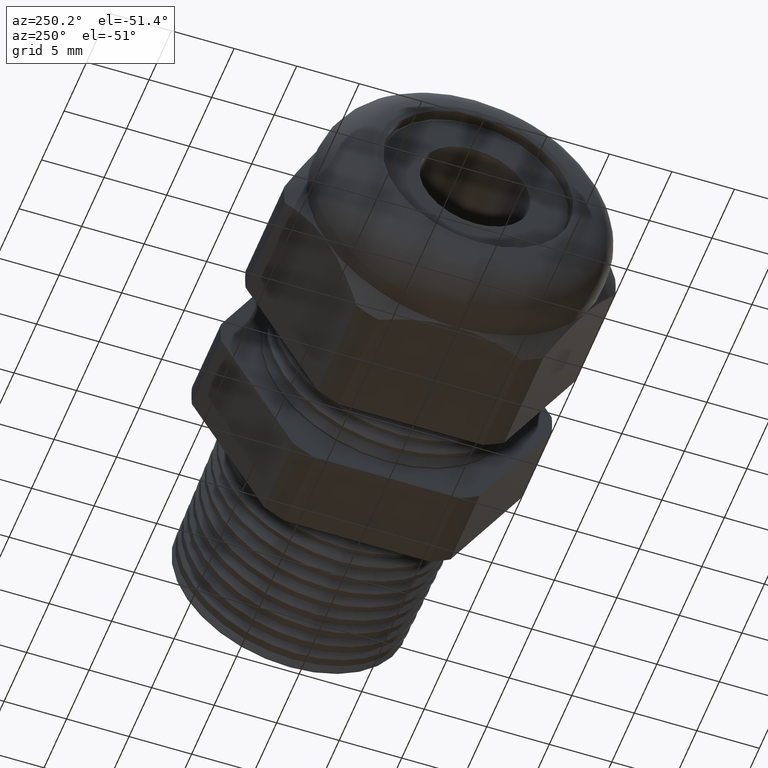
[diagram: clean part render]
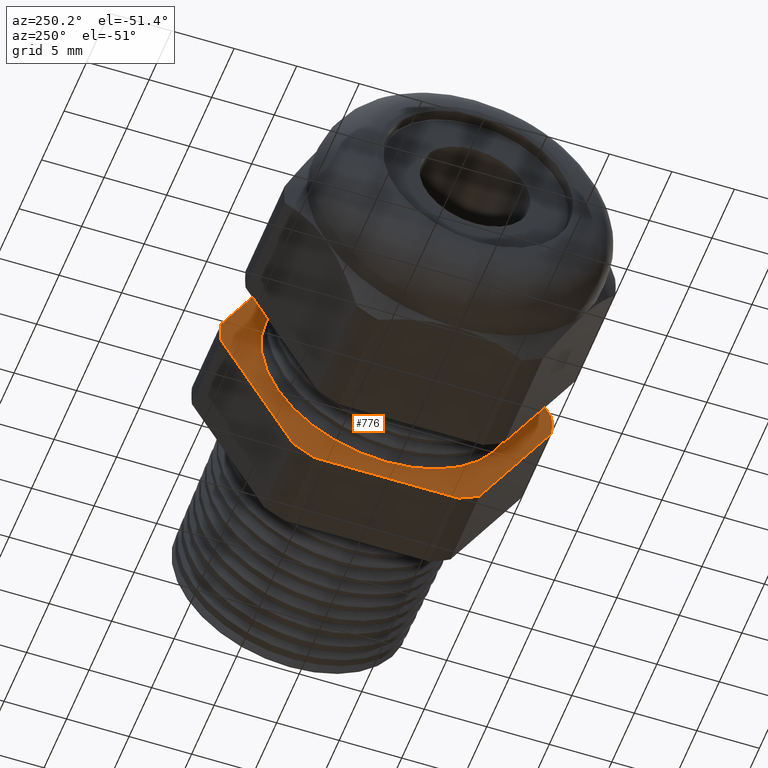
[diagram: same view with one face highlighted and labeled with its STEP entity id]
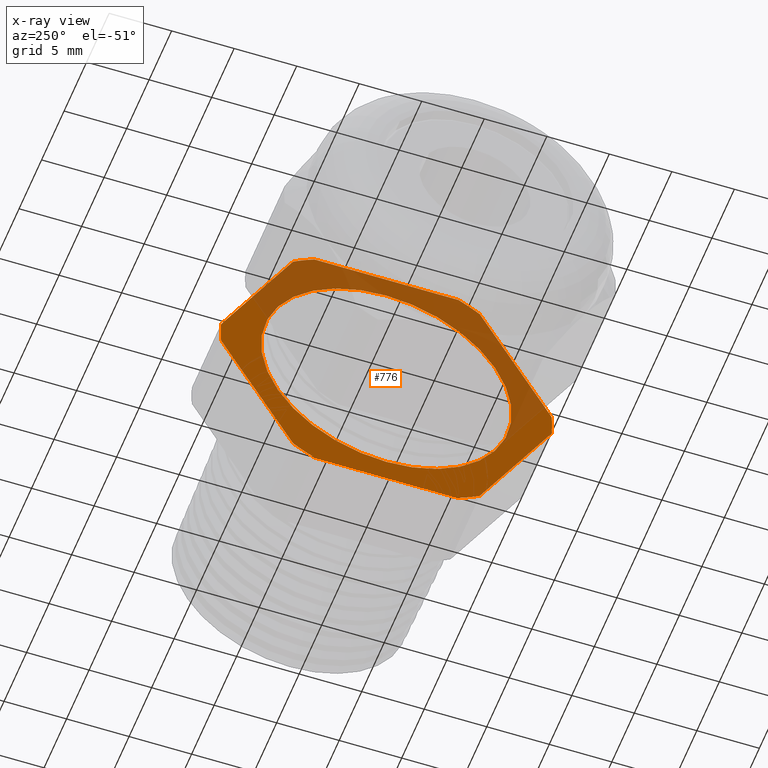
[diagram: x-ray of the same camera — body ghosted, the highlighted face saturated]
A machine part, auxiliary view. The second image highlights one B-rep face of the part: STEP entity #776.
The next image is the same camera in x-ray: the body ghosted, the highlighted face saturated — about 44% of this face is hidden behind the body in this view.
In plain terms, the highlighted planar face has unit normal (-1, 0, 0).
Its self-contained STEP definition (entity closure, byte-faithful):
#108 = VERTEX_POINT ( 'NONE', #1258 ) ;
#110 = VERTEX_POINT ( 'NONE', #1256 ) ;
#112 = EDGE_CURVE ( 'NONE', #108, #110, #1255, .T. ) ;
#611 = VERTEX_POINT ( 'NONE', #2126 ) ;
#644 = VERTEX_POINT ( 'NONE', #2151 ) ;
#646 = EDGE_CURVE ( 'NONE', #664, #644, #2150, .T. ) ;
#654 = VERTEX_POINT ( 'NONE', #2199 ) ;
#656 = EDGE_CURVE ( 'NONE', #671, #654, #2198, .T. ) ;
#664 = VERTEX_POINT ( 'NONE', #2183 ) ;
#666 = EDGE_CURVE ( 'NONE', #654, #664, #2182, .T. ) ;
#671 = VERTEX_POINT ( 'NONE', #2233 ) ;
#673 = EDGE_CURVE ( 'NONE', #611, #671, #2232, .T. ) ;
#682 = VERTEX_POINT ( 'NONE', #2213 ) ;
#684 = EDGE_CURVE ( 'NONE', #699, #682, #2211, .T. ) ;
#691 = VERTEX_POINT ( 'NONE', #2261 ) ;
#693 = EDGE_CURVE ( 'NONE', #682, #691, #2260, .T. ) ;
#699 = VERTEX_POINT ( 'NONE', #2246 ) ;
#701 = EDGE_CURVE ( 'NONE', #716, #699, #2245, .T. ) ;
#707 = VERTEX_POINT ( 'NONE', #2292 ) ;
#709 = EDGE_CURVE ( 'NONE', #644, #707, #2291, .T. ) ;
#716 = VERTEX_POINT ( 'NONE', #2277 ) ;
#718 = EDGE_CURVE ( 'NONE', #707, #716, #2276, .T. ) ;
#734 = VERTEX_POINT ( 'NONE', #2312 ) ;
#736 = EDGE_CURVE ( 'NONE', #752, #734, #2311, .T. ) ;
#743 = EDGE_CURVE ( 'NONE', #734, #611, #2045, .T. ) ;
#752 = VERTEX_POINT ( 'NONE', #2345 ) ;
#754 = EDGE_CURVE ( 'NONE', #691, #752, #2344, .T. ) ;
#767 = ORIENTED_EDGE ( 'NONE', *, *, #701, .T. ) ;
#768 = ORIENTED_EDGE ( 'NONE', *, *, #684, .T. ) ;
#769 = ORIENTED_EDGE ( 'NONE', *, *, #693, .T. ) ;
#770 = ORIENTED_EDGE ( 'NONE', *, *, #754, .T. ) ;
#773 = EDGE_CURVE ( 'NONE', #110, #108, #2375, .T. ) ;
#776 = ADVANCED_FACE ( 'NONE', ( #2370, #2430 ), #2429, .T. ) ;
#777 = EDGE_LOOP ( 'NONE', ( #778, #779 ) ) ;
#778 = ORIENTED_EDGE ( 'NONE', *, *, #773, .T. ) ;
#779 = ORIENTED_EDGE ( 'NONE', *, *, #112, .T. ) ;
#780 = EDGE_LOOP ( 'NONE', ( #781, #782, #783, #838, #839, #840, #841, #842, #767, #768, #769, #770 ) ) ;
#781 = ORIENTED_EDGE ( 'NONE', *, *, #736, .T. ) ;
#782 = ORIENTED_EDGE ( 'NONE', *, *, #743, .T. ) ;
#783 = ORIENTED_EDGE ( 'NONE', *, *, #673, .T. ) ;
#838 = ORIENTED_EDGE ( 'NONE', *, *, #656, .T. ) ;
#839 = ORIENTED_EDGE ( 'NONE', *, *, #666, .T. ) ;
#840 = ORIENTED_EDGE ( 'NONE', *, *, #646, .T. ) ;
#841 = ORIENTED_EDGE ( 'NONE', *, *, #709, .T. ) ;
#842 = ORIENTED_EDGE ( 'NONE', *, *, #718, .T. ) ;
#1251 = DIRECTION ( 'NONE',  ( 0.0000000000000000000, 0.0000000000000000000, -1.000000000000000000 ) ) ;
#1252 = DIRECTION ( 'NONE',  ( 1.000000000000000000, 0.0000000000000000000, 0.0000000000000000000 ) ) ;
#1253 = CARTESIAN_POINT ( 'NONE',  ( -0.5659055118110234400, 0.0000000000000000000, 0.0000000000000000000 ) ) ;
#1254 = AXIS2_PLACEMENT_3D ( 'NONE', #1253, #1252, #1251 ) ;
#1255 = CIRCLE ( 'NONE', #1254, 0.3944081717090066600 ) ;
#1256 = CARTESIAN_POINT ( 'NONE',  ( -0.5659055118110234400, 0.0000000000000000000, 0.3944081717090066600 ) ) ;
#1258 = CARTESIAN_POINT ( 'NONE',  ( -0.5659055118110234400, 4.830905076943201400E-017, -0.3944081717090066600 ) ) ;
#2045 = CIRCLE ( 'NONE', #2365, 0.5217000000000000500 ) ;
#2126 = CARTESIAN_POINT ( 'NONE',  ( -0.5659055118110235500, 0.5202473208008777700, -0.03890520787129508200 ) ) ;
#2146 = DIRECTION ( 'NONE',  ( 0.0000000000000000000, 0.0000000000000000000, 1.000000000000000000 ) ) ;
#2147 = DIRECTION ( 'NONE',  ( -1.000000000000000000, 0.0000000000000000000, 0.0000000000000000000 ) ) ;
#2148 = CARTESIAN_POINT ( 'NONE',  ( -0.5659055118110235500, 0.0000000000000000000, 0.0000000000000000000 ) ) ;
#2149 = AXIS2_PLACEMENT_3D ( 'NONE', #2148, #2147, #2146 ) ;
#2150 = CIRCLE ( 'NONE', #2149, 0.5217000000000000500 ) ;
#2151 = CARTESIAN_POINT ( 'NONE',  ( -0.5659055118110235500, -0.2938165587564944800, -0.4310947921287051100 ) ) ;
#2179 = DIRECTION ( 'NONE',  ( 0.0000000000000000000, -1.000000000000000000, 0.0000000000000000000 ) ) ;
#2180 = VECTOR ( 'NONE', #2179, 39.37007874015748100 ) ;
#2181 = CARTESIAN_POINT ( 'NONE',  ( -0.5659055118110234400, 0.9400000000000000600, -0.4700000000000000300 ) ) ;
#2182 = LINE ( 'NONE', #2181, #2180 ) ;
#2183 = CARTESIAN_POINT ( 'NONE',  ( -0.5659055118110235500, -0.2264307620443831200, -0.4700000000000000300 ) ) ;
#2194 = DIRECTION ( 'NONE',  ( 0.0000000000000000000, 0.0000000000000000000, 1.000000000000000000 ) ) ;
#2195 = DIRECTION ( 'NONE',  ( -1.000000000000000000, 0.0000000000000000000, 0.0000000000000000000 ) ) ;
#2196 = CARTESIAN_POINT ( 'NONE',  ( -0.5659055118110235500, 0.0000000000000000000, 0.0000000000000000000 ) ) ;
#2197 = AXIS2_PLACEMENT_3D ( 'NONE', #2196, #2195, #2194 ) ;
#2198 = CIRCLE ( 'NONE', #2197, 0.5217000000000000500 ) ;
#2199 = CARTESIAN_POINT ( 'NONE',  ( -0.5659055118110235500, 0.2264307620443831200, -0.4700000000000000300 ) ) ;
#2208 = DIRECTION ( 'NONE',  ( -1.000000000000000000, 0.0000000000000000000, 0.0000000000000000000 ) ) ;
#2209 = CARTESIAN_POINT ( 'NONE',  ( -0.5659055118110235500, 0.0000000000000000000, 0.0000000000000000000 ) ) ;
#2210 = AXIS2_PLACEMENT_3D ( 'NONE', #2209, #2208, #2271 ) ;
#2211 = CIRCLE ( 'NONE', #2210, 0.5217000000000000500 ) ;
#2213 = CARTESIAN_POINT ( 'NONE',  ( -0.5659055118110235500, -0.2264307620443835600, 0.4699999999999997500 ) ) ;
#2229 = DIRECTION ( 'NONE',  ( 0.0000000000000000000, -0.4999999999999998300, -0.8660254037844388200 ) ) ;
#2230 = VECTOR ( 'NONE', #2229, 39.37007874015748100 ) ;
#2231 = CARTESIAN_POINT ( 'NONE',  ( -0.5659055118110234400, 0.6420319397786862200, 0.1720319397786861100 ) ) ;
#2232 = LINE ( 'NONE', #2231, #2230 ) ;
#2233 = CARTESIAN_POINT ( 'NONE',  ( -0.5659055118110234400, 0.2938165587564949300, -0.4310947921287048800 ) ) ;
#2242 = DIRECTION ( 'NONE',  ( 0.0000000000000000000, 0.4999999999999996100, 0.8660254037844388200 ) ) ;
#2243 = VECTOR ( 'NONE', #2242, 39.37007874015748900 ) ;
#2244 = CARTESIAN_POINT ( 'NONE',  ( -0.5659055118110234400, -0.1720319397786865500, 0.6420319397786857800 ) ) ;
#2245 = LINE ( 'NONE', #2244, #2243 ) ;
#2246 = CARTESIAN_POINT ( 'NONE',  ( -0.5659055118110235500, -0.2938165587564948700, 0.4310947921287048800 ) ) ;
#2257 = DIRECTION ( 'NONE',  ( 0.0000000000000000000, 1.000000000000000000, 0.0000000000000000000 ) ) ;
#2258 = VECTOR ( 'NONE', #2257, 39.37007874015748100 ) ;
#2259 = CARTESIAN_POINT ( 'NONE',  ( -0.5659055118110234400, 0.9400000000000000600, 0.4699999999999999200 ) ) ;
#2260 = LINE ( 'NONE', #2259, #2258 ) ;
#2261 = CARTESIAN_POINT ( 'NONE',  ( -0.5659055118110235500, 0.2264307620443832800, 0.4699999999999999200 ) ) ;
#2271 = DIRECTION ( 'NONE',  ( 0.0000000000000000000, 0.0000000000000000000, 1.000000000000000000 ) ) ;
#2272 = DIRECTION ( 'NONE',  ( 0.0000000000000000000, 0.0000000000000000000, 1.000000000000000000 ) ) ;
#2273 = DIRECTION ( 'NONE',  ( -1.000000000000000000, 0.0000000000000000000, 0.0000000000000000000 ) ) ;
#2274 = CARTESIAN_POINT ( 'NONE',  ( -0.5659055118110235500, 0.0000000000000000000, 0.0000000000000000000 ) ) ;
#2275 = AXIS2_PLACEMENT_3D ( 'NONE', #2274, #2273, #2272 ) ;
#2276 = CIRCLE ( 'NONE', #2275, 0.5217000000000000500 ) ;
#2277 = CARTESIAN_POINT ( 'NONE',  ( -0.5659055118110235500, -0.5202473208008777700, 0.03890520787129464500 ) ) ;
#2288 = DIRECTION ( 'NONE',  ( 0.0000000000000000000, -0.5000000000000000000, 0.8660254037844386000 ) ) ;
#2289 = VECTOR ( 'NONE', #2288, 39.37007874015748900 ) ;
#2290 = CARTESIAN_POINT ( 'NONE',  ( -0.5659055118110234400, -0.1720319397786861700, -0.6420319397786863300 ) ) ;
#2291 = LINE ( 'NONE', #2290, #2289 ) ;
#2292 = CARTESIAN_POINT ( 'NONE',  ( -0.5659055118110235500, -0.5202473208008777700, -0.03890520787129508900 ) ) ;
#2308 = DIRECTION ( 'NONE',  ( 0.0000000000000000000, 0.4999999999999998300, -0.8660254037844386000 ) ) ;
#2309 = VECTOR ( 'NONE', #2308, 39.37007874015748900 ) ;
#2310 = CARTESIAN_POINT ( 'NONE',  ( -0.5659055118110234400, 0.6420319397786863300, -0.1720319397786860500 ) ) ;
#2311 = LINE ( 'NONE', #2310, #2309 ) ;
#2312 = CARTESIAN_POINT ( 'NONE',  ( -0.5659055118110235500, 0.5202473208008776600, 0.03890520787129532500 ) ) ;
#2340 = DIRECTION ( 'NONE',  ( 0.0000000000000000000, 0.0000000000000000000, 1.000000000000000000 ) ) ;
#2341 = DIRECTION ( 'NONE',  ( -1.000000000000000000, 0.0000000000000000000, 0.0000000000000000000 ) ) ;
#2342 = CARTESIAN_POINT ( 'NONE',  ( -0.5659055118110235500, 0.0000000000000000000, 0.0000000000000000000 ) ) ;
#2343 = AXIS2_PLACEMENT_3D ( 'NONE', #2342, #2341, #2340 ) ;
#2344 = CIRCLE ( 'NONE', #2343, 0.5217000000000000500 ) ;
#2345 = CARTESIAN_POINT ( 'NONE',  ( -0.5659055118110235500, 0.2938165587564949300, 0.4310947921287048300 ) ) ;
#2362 = DIRECTION ( 'NONE',  ( 0.0000000000000000000, 0.0000000000000000000, 1.000000000000000000 ) ) ;
#2363 = DIRECTION ( 'NONE',  ( -1.000000000000000000, 0.0000000000000000000, 0.0000000000000000000 ) ) ;
#2364 = CARTESIAN_POINT ( 'NONE',  ( -0.5659055118110235500, 0.0000000000000000000, 0.0000000000000000000 ) ) ;
#2365 = AXIS2_PLACEMENT_3D ( 'NONE', #2364, #2363, #2362 ) ;
#2366 = DIRECTION ( 'NONE',  ( 0.0000000000000000000, 0.0000000000000000000, -1.000000000000000000 ) ) ;
#2367 = DIRECTION ( 'NONE',  ( 1.000000000000000000, 0.0000000000000000000, 0.0000000000000000000 ) ) ;
#2368 = CARTESIAN_POINT ( 'NONE',  ( -0.5659055118110234400, 0.0000000000000000000, 0.0000000000000000000 ) ) ;
#2369 = AXIS2_PLACEMENT_3D ( 'NONE', #2368, #2367, #2366 ) ;
#2370 = FACE_BOUND ( 'NONE', #777, .T. ) ;
#2375 = CIRCLE ( 'NONE', #2369, 0.3944081717090066600 ) ;
#2425 = DIRECTION ( 'NONE',  ( 0.0000000000000000000, 0.0000000000000000000, 1.000000000000000000 ) ) ;
#2426 = DIRECTION ( 'NONE',  ( -1.000000000000000000, 0.0000000000000000000, 0.0000000000000000000 ) ) ;
#2427 = CARTESIAN_POINT ( 'NONE',  ( -0.5659055118110234400, 0.9400000000000000600, 0.0000000000000000000 ) ) ;
#2428 = AXIS2_PLACEMENT_3D ( 'NONE', #2427, #2426, #2425 ) ;
#2429 = PLANE ( 'NONE',  #2428 ) ;
#2430 = FACE_OUTER_BOUND ( 'NONE', #780, .T. ) ;